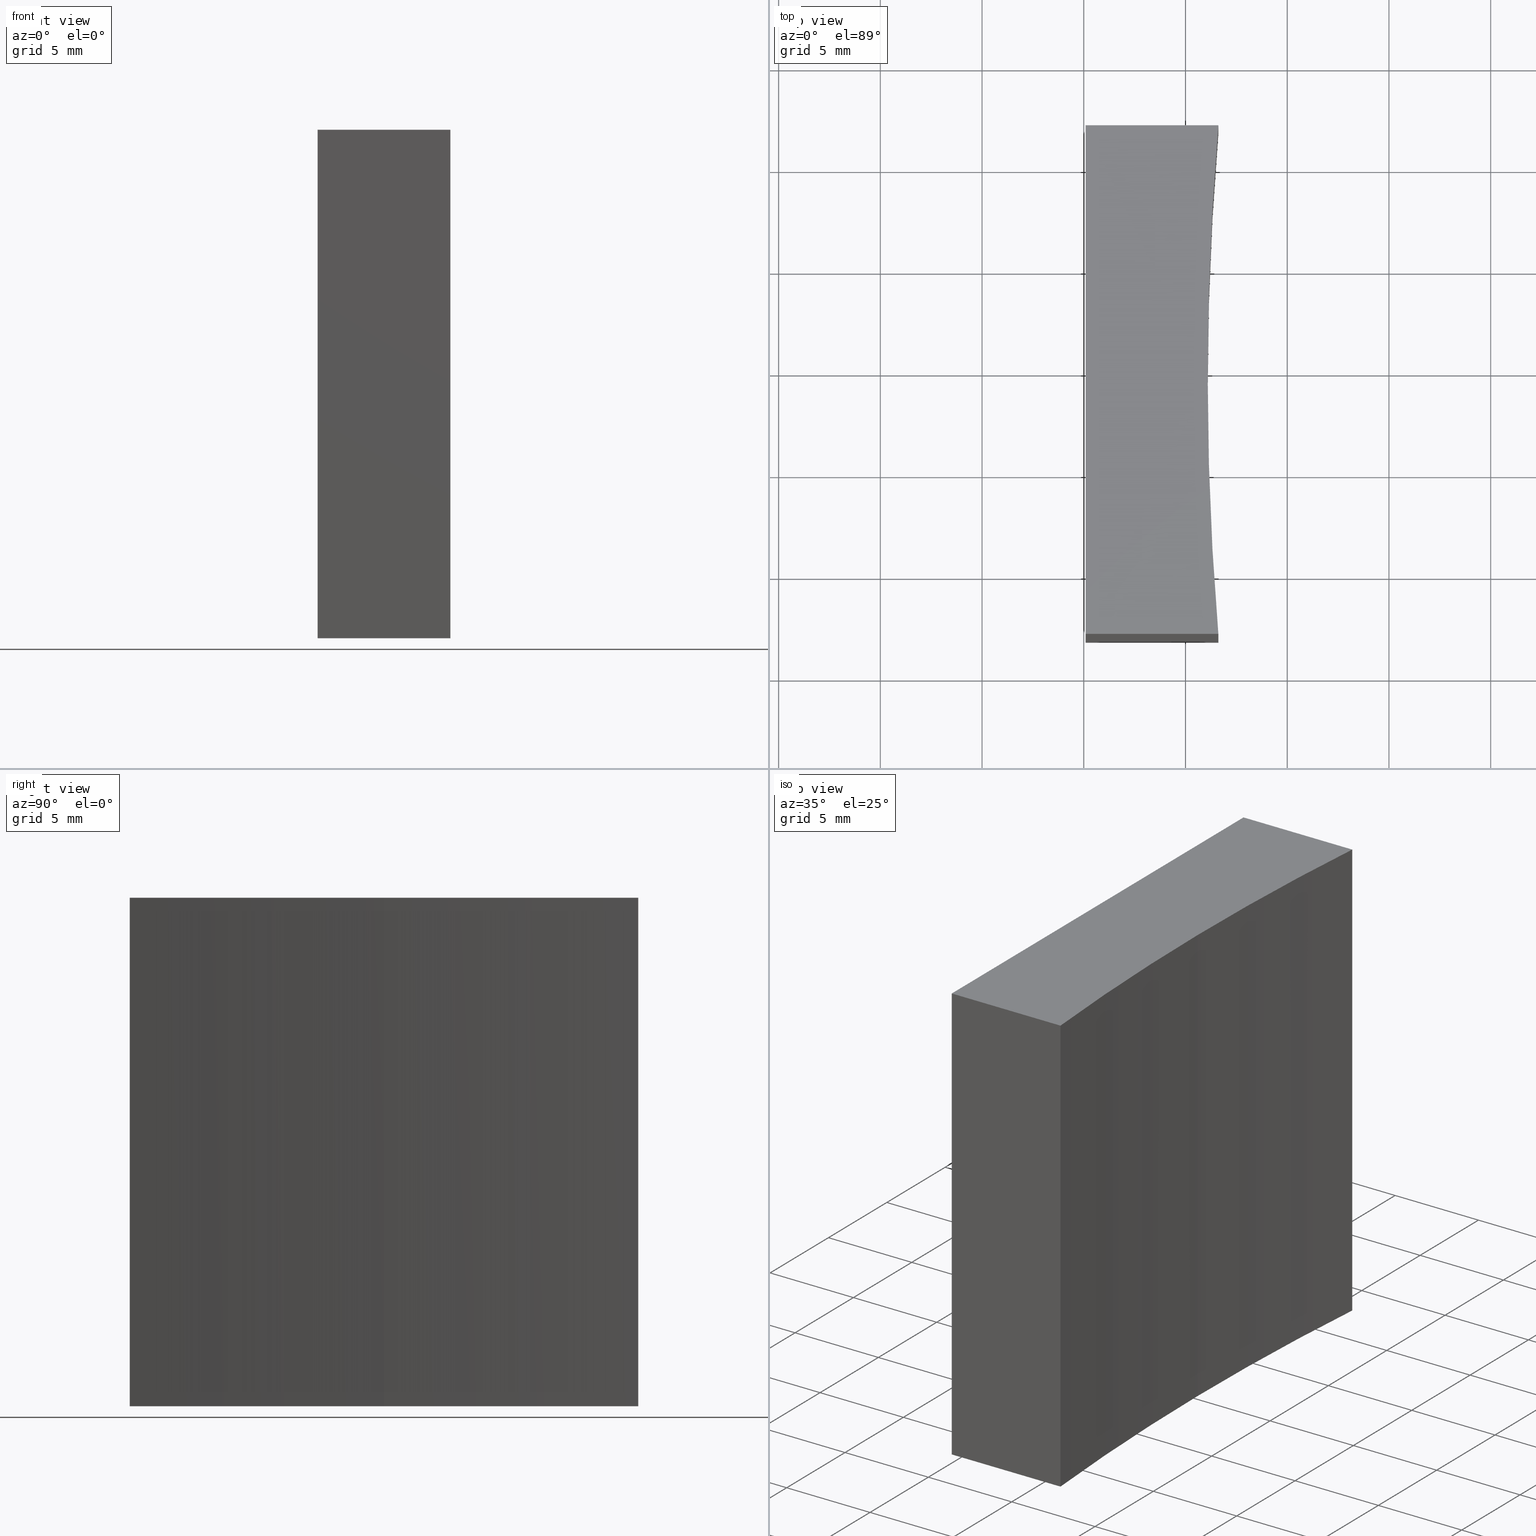
[diagram: canonical four-view strip — front | top / right | iso, engineering-drawing reading convention]
A machine part, canonical four-view strip (front | top / right | iso — engineering-drawing reading convention). The complete STEP part file that produces these views, byte-faithful:
ISO-10303-21;
HEADER;
FILE_DESCRIPTION (( 'STEP AP214' ),
    '1' );
FILE_NAME ('270037.STEP',
    '2019-07-23T01:28:20',
    ( '' ),
    ( '' ),
    'SwSTEP 2.0',
    'SolidWorks 2016',
    '' );
FILE_SCHEMA (( 'AUTOMOTIVE_DESIGN' ));
ENDSEC;

DATA;
#1 = DIRECTION ( 'NONE',  ( 4.255853749513933100E-015, -1.000000000000000000, 0.0000000000000000000 ) ) ;
#2 = CARTESIAN_POINT ( 'NONE',  ( 115.0926555349195200, 81.87802112337243400, 0.0000000000000000000 ) ) ;
#3 = FACE_OUTER_BOUND ( 'NONE', #183, .T. ) ;
#4 = AXIS2_PLACEMENT_3D ( 'NONE', #73, #71, #13 ) ;
#5 = CARTESIAN_POINT ( 'NONE',  ( 271.0926557596387700, 69.37802112337249100, 0.0000000000000000000 ) ) ;
#6 = EDGE_CURVE ( 'NONE', #19, #80, #148, .T. ) ;
#7 = CARTESIAN_POINT ( 'NONE',  ( 121.0926557596387600, 69.37802112337249100, 25.00000000000000000 ) ) ;
#8 = LINE ( 'NONE', #144, #136 ) ;
#9 = ORIENTED_EDGE ( 'NONE', *, *, #218, .T. ) ;
#10 = CARTESIAN_POINT ( 'NONE',  ( 0.0000000000000000000, 0.0000000000000000000, 0.0000000000000000000 ) ) ;
#11 = VECTOR ( 'NONE', #169, 1000.000000000000000 ) ;
#12 = MANIFOLD_SOLID_BREP ( '͹̨-����1', #194 ) ;
#13 = DIRECTION ( 'NONE',  ( 1.000000000000000000, 0.0000000000000000000, 0.0000000000000000000 ) ) ;
#14 = LINE ( 'NONE', #182, #114 ) ;
#15 = ORIENTED_EDGE ( 'NONE', *, *, #105, .F. ) ;
#16 = PRODUCT_RELATED_PRODUCT_CATEGORY ( 'part', '', ( #153 ) ) ;
#17 = ORIENTED_EDGE ( 'NONE', *, *, #195, .T. ) ;
#18 = EDGE_CURVE ( 'NONE', #94, #115, #60, .T. ) ;
#19 = VERTEX_POINT ( 'NONE', #204 ) ;
#20 = CARTESIAN_POINT ( 'NONE',  ( 121.6143964708713000, 81.87802112337246300, 25.00000000000000000 ) ) ;
#21 = DIRECTION ( 'NONE',  ( 1.000000000000000000, 1.063963437378483000E-014, 0.0000000000000000000 ) ) ;
#22 = DIRECTION ( 'NONE',  ( 1.000000000000000000, 0.0000000000000000000, 0.0000000000000000000 ) ) ;
#23 = ORIENTED_EDGE ( 'NONE', *, *, #18, .T. ) ;
#24 = CARTESIAN_POINT ( 'NONE',  ( 115.0926555349195200, 69.37802112337243400, 25.00000000000000000 ) ) ;
#25 = CARTESIAN_POINT ( 'NONE',  ( 121.6143964708712700, 56.87802112337257700, 25.00000000000000000 ) ) ;
#26 = CARTESIAN_POINT ( 'NONE',  ( 115.0926555349195200, 81.87802112337243400, 25.00000000000000000 ) ) ;
#27 = CIRCLE ( 'NONE', #4, 149.9999999999999700 ) ;
#28 = ADVANCED_BREP_SHAPE_REPRESENTATION ( '270037', ( #12, #222 ), #217 ) ;
#29 = PLANE ( 'NONE',  #61 ) ;
#30 =( LENGTH_UNIT ( ) NAMED_UNIT ( * ) SI_UNIT ( .MILLI., .METRE. ) );
#31 = VERTEX_POINT ( 'NONE', #235 ) ;
#32 = VECTOR ( 'NONE', #149, 1000.000000000000000 ) ;
#33 = ORIENTED_EDGE ( 'NONE', *, *, #133, .T. ) ;
#34 = FACE_OUTER_BOUND ( 'NONE', #166, .T. ) ;
#35 = AXIS2_PLACEMENT_3D ( 'NONE', #5, #86, #75 ) ;
#36 = ADVANCED_FACE ( 'NONE', ( #92 ), #207, .F. ) ;
#37 = AXIS2_PLACEMENT_3D ( 'NONE', #70, #85, #172 ) ;
#38 = LINE ( 'NONE', #107, #48 ) ;
#39 = ORIENTED_EDGE ( 'NONE', *, *, #95, .F. ) ;
#40 = DIRECTION ( 'NONE',  ( -0.0000000000000000000, -0.0000000000000000000, -1.000000000000000000 ) ) ;
#41 =( NAMED_UNIT ( * ) PLANE_ANGLE_UNIT ( ) SI_UNIT ( $, .RADIAN. ) );
#42 = SURFACE_STYLE_FILL_AREA ( #167 ) ;
#43 = ORIENTED_EDGE ( 'NONE', *, *, #6, .F. ) ;
#44 = EDGE_CURVE ( 'NONE', #123, #57, #158, .T. ) ;
#45 = PLANE ( 'NONE',  #234 ) ;
#46 = DIRECTION ( 'NONE',  ( 0.0000000000000000000, 0.0000000000000000000, 1.000000000000000000 ) ) ;
#47 = CARTESIAN_POINT ( 'NONE',  ( 115.0926555349195200, 69.37802112337243400, 0.0000000000000000000 ) ) ;
#48 = VECTOR ( 'NONE', #150, 1000.000000000000000 ) ;
#49 = EDGE_CURVE ( 'NONE', #123, #31, #14, .T. ) ;
#50 = DIRECTION ( 'NONE',  ( -0.0000000000000000000, -0.0000000000000000000, -1.000000000000000000 ) ) ;
#51 = CARTESIAN_POINT ( 'NONE',  ( 121.0926557596387600, 69.37802112337249100, 0.0000000000000000000 ) ) ;
#52 = APPLICATION_PROTOCOL_DEFINITION ( 'draft international standard', 'automotive_design', 1998, #199 ) ;
#53 = COLOUR_RGB ( '',1.000000000000000000, 1.000000000000000000, 1.000000000000000000 ) ;
#54 = ORIENTED_EDGE ( 'NONE', *, *, #49, .T. ) ;
#55 = DIRECTION ( 'NONE',  ( -0.0000000000000000000, -0.0000000000000000000, -1.000000000000000000 ) ) ;
#56 = VECTOR ( 'NONE', #55, 1000.000000000000000 ) ;
#57 = VERTEX_POINT ( 'NONE', #25 ) ;
#58 = ADVANCED_FACE ( 'NONE', ( #3 ), #45, .F. ) ;
#59 = EDGE_CURVE ( 'NONE', #94, #175, #8, .T. ) ;
#60 = LINE ( 'NONE', #20, #156 ) ;
#61 = AXIS2_PLACEMENT_3D ( 'NONE', #84, #46, #196 ) ;
#62 = EDGE_CURVE ( 'NONE', #31, #19, #100, .T. ) ;
#63 = ORIENTED_EDGE ( 'NONE', *, *, #105, .T. ) ;
#64 = ADVANCED_FACE ( 'NONE', ( #225 ), #185, .F. ) ;
#65 = DIRECTION ( 'NONE',  ( -1.000000000000000000, 0.0000000000000000000, 0.0000000000000000000 ) ) ;
#66 = DIRECTION ( 'NONE',  ( 1.000000000000000000, 0.0000000000000000000, 0.0000000000000000000 ) ) ;
#67 = DIRECTION ( 'NONE',  ( -1.000000000000000000, -1.063963437378483000E-014, 0.0000000000000000000 ) ) ;
#68 = FACE_OUTER_BOUND ( 'NONE', #181, .T. ) ;
#69 = ORIENTED_EDGE ( 'NONE', *, *, #44, .T. ) ;
#70 = CARTESIAN_POINT ( 'NONE',  ( 271.0926557596387700, 69.37802112337249100, 25.00000000000000000 ) ) ;
#71 = DIRECTION ( 'NONE',  ( -0.0000000000000000000, -0.0000000000000000000, -1.000000000000000000 ) ) ;
#72 = EDGE_CURVE ( 'NONE', #57, #230, #180, .T. ) ;
#73 = CARTESIAN_POINT ( 'NONE',  ( 271.0926557596387700, 69.37802112337249100, 25.00000000000000000 ) ) ;
#74 = EDGE_LOOP ( 'NONE', ( #209, #69, #193, #137, #91 ) ) ;
#75 = DIRECTION ( 'NONE',  ( 1.000000000000000000, 0.0000000000000000000, 0.0000000000000000000 ) ) ;
#76 = PRODUCT_DEFINITION ( 'δ֪', '', #236, #140 ) ;
#77 =( GEOMETRIC_REPRESENTATION_CONTEXT ( 3 ) GLOBAL_UNCERTAINTY_ASSIGNED_CONTEXT ( ( #121 ) ) GLOBAL_UNIT_ASSIGNED_CONTEXT ( ( #163, #41, #237 ) ) REPRESENTATION_CONTEXT ( 'NONE', 'WORKASPACE' ) );
#78 = ORIENTED_EDGE ( 'NONE', *, *, #49, .F. ) ;
#79 = PRESENTATION_STYLE_ASSIGNMENT (( #132 ) ) ;
#80 = VERTEX_POINT ( 'NONE', #51 ) ;
#81 = DIRECTION ( 'NONE',  ( -0.0000000000000000000, -0.0000000000000000000, -1.000000000000000000 ) ) ;
#82 = CARTESIAN_POINT ( 'NONE',  ( 271.0926557596387700, 69.37802112337249100, 0.0000000000000000000 ) ) ;
#83 = PRESENTATION_LAYER_ASSIGNMENT (  '', '', ( #157 ) ) ;
#84 = CARTESIAN_POINT ( 'NONE',  ( 271.0926557596387700, 69.37802112337249100, 25.00000000000000000 ) ) ;
#85 = DIRECTION ( 'NONE',  ( -0.0000000000000000000, -0.0000000000000000000, -1.000000000000000000 ) ) ;
#86 = DIRECTION ( 'NONE',  ( -0.0000000000000000000, -0.0000000000000000000, -1.000000000000000000 ) ) ;
#87 = VECTOR ( 'NONE', #103, 1000.000000000000000 ) ;
#88 = ORIENTED_EDGE ( 'NONE', *, *, #117, .F. ) ;
#89 = DIRECTION ( 'NONE',  ( 0.0000000000000000000, 0.0000000000000000000, -1.000000000000000000 ) ) ;
#90 = VECTOR ( 'NONE', #108, 1000.000000000000000 ) ;
#91 = ORIENTED_EDGE ( 'NONE', *, *, #59, .T. ) ;
#92 = FACE_OUTER_BOUND ( 'NONE', #102, .T. ) ;
#93 = SURFACE_STYLE_FILL_AREA ( #174 ) ;
#94 = VERTEX_POINT ( 'NONE', #208 ) ;
#95 = EDGE_CURVE ( 'NONE', #175, #123, #202, .T. ) ;
#96 = ADVANCED_FACE ( 'NONE', ( #164 ), #212, .F. ) ;
#97 = MECHANICAL_DESIGN_GEOMETRIC_PRESENTATION_REPRESENTATION (  '', ( #157 ), #104 ) ;
#98 = DIRECTION ( 'NONE',  ( -0.0000000000000000000, -0.0000000000000000000, -1.000000000000000000 ) ) ;
#99 = PRESENTATION_LAYER_ASSIGNMENT (  '', '', ( #206 ) ) ;
#100 = LINE ( 'NONE', #221, #90 ) ;
#101 = SURFACE_SIDE_STYLE ('',( #42 ) ) ;
#102 = EDGE_LOOP ( 'NONE', ( #226, #110, #15, #173, #43 ) ) ;
#103 = DIRECTION ( 'NONE',  ( -0.0000000000000000000, -0.0000000000000000000, -1.000000000000000000 ) ) ;
#104 =( GEOMETRIC_REPRESENTATION_CONTEXT ( 3 ) GLOBAL_UNCERTAINTY_ASSIGNED_CONTEXT ( ( #145 ) ) GLOBAL_UNIT_ASSIGNED_CONTEXT ( ( #129, #128, #215 ) ) REPRESENTATION_CONTEXT ( 'NONE', 'WORKASPACE' ) );
#105 = EDGE_CURVE ( 'NONE', #115, #179, #38, .T. ) ;
#106 = CARTESIAN_POINT ( 'NONE',  ( 115.0926555349195200, 69.37802112337243400, 25.00000000000000000 ) ) ;
#107 = CARTESIAN_POINT ( 'NONE',  ( 115.0926555349195200, 81.87802112337243400, 0.0000000000000000000 ) ) ;
#108 = DIRECTION ( 'NONE',  ( 1.000000000000000000, 1.063963437378483000E-014, 0.0000000000000000000 ) ) ;
#109 = FILL_AREA_STYLE_COLOUR ( '', #53 ) ;
#110 = ORIENTED_EDGE ( 'NONE', *, *, #198, .F. ) ;
#111 = AXIS2_PLACEMENT_3D ( 'NONE', #127, #189, #66 ) ;
#112 = LINE ( 'NONE', #47, #161 ) ;
#113 = AXIS2_PLACEMENT_3D ( 'NONE', #138, #239, #139 ) ;
#114 = VECTOR ( 'NONE', #98, 1000.000000000000000 ) ;
#115 = VERTEX_POINT ( 'NONE', #124 ) ;
#116 = ADVANCED_FACE ( 'NONE', ( #68 ), #134, .F. ) ;
#117 = EDGE_CURVE ( 'NONE', #175, #179, #152, .T. ) ;
#118 = PRESENTATION_STYLE_ASSIGNMENT (( #120 ) ) ;
#119 = EDGE_LOOP ( 'NONE', ( #63, #88, #232, #23 ) ) ;
#120 = SURFACE_STYLE_USAGE ( .BOTH. , #101 ) ;
#121 = UNCERTAINTY_MEASURE_WITH_UNIT (LENGTH_MEASURE( 1.000000000000000100E-005 ), #163, 'distance_accuracy_value', 'NONE');
#122 = AXIS2_PLACEMENT_3D ( 'NONE', #26, #1, #211 ) ;
#123 = VERTEX_POINT ( 'NONE', #224 ) ;
#124 = CARTESIAN_POINT ( 'NONE',  ( 121.6143964708713000, 81.87802112337246300, 0.0000000000000000000 ) ) ;
#125 = DIRECTION ( 'NONE',  ( -1.000000000000000000, -4.255853749513932300E-015, -0.0000000000000000000 ) ) ;
#126 = EDGE_LOOP ( 'NONE', ( #131, #78, #39, #154 ) ) ;
#127 = CARTESIAN_POINT ( 'NONE',  ( 271.0926557596387700, 69.37802112337249100, 25.00000000000000000 ) ) ;
#128 =( NAMED_UNIT ( * ) PLANE_ANGLE_UNIT ( ) SI_UNIT ( $, .RADIAN. ) );
#129 =( LENGTH_UNIT ( ) NAMED_UNIT ( * ) SI_UNIT ( .MILLI., .METRE. ) );
#130 = APPLICATION_CONTEXT ( 'automotive_design' ) ;
#131 = ORIENTED_EDGE ( 'NONE', *, *, #198, .T. ) ;
#132 = SURFACE_STYLE_USAGE ( .BOTH. , #228 ) ;
#133 = EDGE_CURVE ( 'NONE', #230, #80, #191, .T. ) ;
#134 = CYLINDRICAL_SURFACE ( 'NONE', #37, 150.0000000000000000 ) ;
#135 = ORIENTED_EDGE ( 'NONE', *, *, #6, .T. ) ;
#136 = VECTOR ( 'NONE', #125, 1000.000000000000000 ) ;
#137 = ORIENTED_EDGE ( 'NONE', *, *, #210, .T. ) ;
#138 = CARTESIAN_POINT ( 'NONE',  ( 271.0926557596387700, 69.37802112337249100, 0.0000000000000000000 ) ) ;
#139 = DIRECTION ( 'NONE',  ( 1.000000000000000000, 0.0000000000000000000, -0.0000000000000000000 ) ) ;
#140 = PRODUCT_DEFINITION_CONTEXT ( 'detailed design', #130, 'design' ) ;
#141 = LINE ( 'NONE', #231, #56 ) ;
#142 = COLOUR_RGB ( '',1.000000000000000000, 1.000000000000000000, 1.000000000000000000 ) ;
#143 = CARTESIAN_POINT ( 'NONE',  ( 115.0926555349195200, 56.87802112337244200, 25.00000000000000000 ) ) ;
#144 = CARTESIAN_POINT ( 'NONE',  ( 115.0926555349195200, 81.87802112337243400, 25.00000000000000000 ) ) ;
#145 = UNCERTAINTY_MEASURE_WITH_UNIT (LENGTH_MEASURE( 1.000000000000000100E-005 ), #129, 'distance_accuracy_value', 'NONE');
#146 = MECHANICAL_DESIGN_GEOMETRIC_PRESENTATION_REPRESENTATION (  '', ( #206 ), #77 ) ;
#147 = DIRECTION ( 'NONE',  ( -1.063963437378483000E-014, 1.000000000000000000, 0.0000000000000000000 ) ) ;
#148 = CIRCLE ( 'NONE', #201, 149.9999999999999700 ) ;
#149 = DIRECTION ( 'NONE',  ( -0.0000000000000000000, -0.0000000000000000000, -1.000000000000000000 ) ) ;
#150 = DIRECTION ( 'NONE',  ( -1.000000000000000000, -4.255853749513932300E-015, -0.0000000000000000000 ) ) ;
#151 = APPLICATION_PROTOCOL_DEFINITION ( 'draft international standard', 'automotive_design', 1998, #130 ) ;
#152 = LINE ( 'NONE', #170, #87 ) ;
#153 = PRODUCT ( '270037', '270037', '', ( #200 ) ) ;
#154 = ORIENTED_EDGE ( 'NONE', *, *, #117, .T. ) ;
#155 =( NAMED_UNIT ( * ) PLANE_ANGLE_UNIT ( ) SI_UNIT ( $, .RADIAN. ) );
#156 = VECTOR ( 'NONE', #40, 1000.000000000000000 ) ;
#157 = STYLED_ITEM ( 'NONE', ( #79 ), #28 ) ;
#158 = LINE ( 'NONE', #143, #229 ) ;
#159 = ORIENTED_EDGE ( 'NONE', *, *, #72, .F. ) ;
#160 = SHAPE_DEFINITION_REPRESENTATION ( #216, #28 ) ;
#161 = VECTOR ( 'NONE', #184, 1000.000000000000000 ) ;
#162 = ADVANCED_FACE ( 'NONE', ( #219 ), #29, .T. ) ;
#163 =( LENGTH_UNIT ( ) NAMED_UNIT ( * ) SI_UNIT ( .MILLI., .METRE. ) );
#164 = FACE_OUTER_BOUND ( 'NONE', #126, .T. ) ;
#165 = ADVANCED_FACE ( 'NONE', ( #34 ), #192, .F. ) ;
#166 = EDGE_LOOP ( 'NONE', ( #214, #33, #17, #178 ) ) ;
#167 = FILL_AREA_STYLE ('',( #205 ) ) ;
#168 = AXIS2_PLACEMENT_3D ( 'NONE', #106, #197, #89 ) ;
#169 = DIRECTION ( 'NONE',  ( 0.0000000000000000000, -1.000000000000000000, 0.0000000000000000000 ) ) ;
#170 = CARTESIAN_POINT ( 'NONE',  ( 115.0926555349195200, 81.87802112337243400, 25.00000000000000000 ) ) ;
#171 = CARTESIAN_POINT ( 'NONE',  ( 271.0926557596387700, 69.37802112337249100, 25.00000000000000000 ) ) ;
#172 = DIRECTION ( 'NONE',  ( -1.000000000000000000, 0.0000000000000000000, 0.0000000000000000000 ) ) ;
#173 = ORIENTED_EDGE ( 'NONE', *, *, #195, .F. ) ;
#174 = FILL_AREA_STYLE ('',( #109 ) ) ;
#175 = VERTEX_POINT ( 'NONE', #223 ) ;
#176 = DIRECTION ( 'NONE',  ( 1.000000000000000000, 0.0000000000000000000, 0.0000000000000000000 ) ) ;
#177 = CARTESIAN_POINT ( 'NONE',  ( 121.0926557596387600, 69.37802112337249100, 25.00000000000000000 ) ) ;
#178 = ORIENTED_EDGE ( 'NONE', *, *, #18, .F. ) ;
#179 = VERTEX_POINT ( 'NONE', #2 ) ;
#180 = CIRCLE ( 'NONE', #111, 149.9999999999999700 ) ;
#181 = EDGE_LOOP ( 'NONE', ( #203, #159, #9, #135 ) ) ;
#182 = CARTESIAN_POINT ( 'NONE',  ( 115.0926555349195200, 56.87802112337244200, 25.00000000000000000 ) ) ;
#183 = EDGE_LOOP ( 'NONE', ( #187, #238, #220, #54 ) ) ;
#184 = DIRECTION ( 'NONE',  ( -0.0000000000000000000, -1.000000000000000000, -0.0000000000000000000 ) ) ;
#185 = PLANE ( 'NONE',  #122 ) ;
#186 = CIRCLE ( 'NONE', #35, 149.9999999999999700 ) ;
#187 = ORIENTED_EDGE ( 'NONE', *, *, #62, .T. ) ;
#188 = CARTESIAN_POINT ( 'NONE',  ( 115.0926555349195200, 56.87802112337244200, 25.00000000000000000 ) ) ;
#189 = DIRECTION ( 'NONE',  ( -0.0000000000000000000, -0.0000000000000000000, -1.000000000000000000 ) ) ;
#190 =( NAMED_UNIT ( * ) SI_UNIT ( $, .STERADIAN. ) SOLID_ANGLE_UNIT ( ) );
#191 = LINE ( 'NONE', #7, #32 ) ;
#192 = CYLINDRICAL_SURFACE ( 'NONE', #227, 150.0000000000000000 ) ;
#193 = ORIENTED_EDGE ( 'NONE', *, *, #72, .T. ) ;
#194 = CLOSED_SHELL ( 'NONE', ( #165, #58, #116, #64, #96, #162, #36 ) ) ;
#195 = EDGE_CURVE ( 'NONE', #80, #115, #186, .T. ) ;
#196 = DIRECTION ( 'NONE',  ( 1.000000000000000000, 0.0000000000000000000, -0.0000000000000000000 ) ) ;
#197 = DIRECTION ( 'NONE',  ( 1.000000000000000000, 0.0000000000000000000, 0.0000000000000000000 ) ) ;
#198 = EDGE_CURVE ( 'NONE', #179, #31, #112, .T. ) ;
#199 = APPLICATION_CONTEXT ( 'automotive_design' ) ;
#200 = PRODUCT_CONTEXT ( 'NONE', #199, 'mechanical' ) ;
#201 = AXIS2_PLACEMENT_3D ( 'NONE', #82, #81, #22 ) ;
#202 = LINE ( 'NONE', #24, #11 ) ;
#203 = ORIENTED_EDGE ( 'NONE', *, *, #133, .F. ) ;
#204 = CARTESIAN_POINT ( 'NONE',  ( 121.6143964708712700, 56.87802112337257700, 0.0000000000000000000 ) ) ;
#205 = FILL_AREA_STYLE_COLOUR ( '', #142 ) ;
#206 = STYLED_ITEM ( 'NONE', ( #118 ), #12 ) ;
#207 = PLANE ( 'NONE',  #113 ) ;
#208 = CARTESIAN_POINT ( 'NONE',  ( 121.6143964708713000, 81.87802112337246300, 25.00000000000000000 ) ) ;
#209 = ORIENTED_EDGE ( 'NONE', *, *, #95, .T. ) ;
#210 = EDGE_CURVE ( 'NONE', #230, #94, #27, .T. ) ;
#211 = DIRECTION ( 'NONE',  ( 1.000000000000000000, 4.255853749513933100E-015, 0.0000000000000000000 ) ) ;
#212 = PLANE ( 'NONE',  #168 ) ;
#213 = DIRECTION ( 'NONE',  ( 0.0000000000000000000, 0.0000000000000000000, 1.000000000000000000 ) ) ;
#214 = ORIENTED_EDGE ( 'NONE', *, *, #210, .F. ) ;
#215 =( NAMED_UNIT ( * ) SI_UNIT ( $, .STERADIAN. ) SOLID_ANGLE_UNIT ( ) );
#216 = PRODUCT_DEFINITION_SHAPE ( 'NONE', 'NONE',  #76 ) ;
#217 =( GEOMETRIC_REPRESENTATION_CONTEXT ( 3 ) GLOBAL_UNCERTAINTY_ASSIGNED_CONTEXT ( ( #233 ) ) GLOBAL_UNIT_ASSIGNED_CONTEXT ( ( #30, #155, #190 ) ) REPRESENTATION_CONTEXT ( 'NONE', 'WORKASPACE' ) );
#218 = EDGE_CURVE ( 'NONE', #57, #19, #141, .T. ) ;
#219 = FACE_OUTER_BOUND ( 'NONE', #74, .T. ) ;
#220 = ORIENTED_EDGE ( 'NONE', *, *, #44, .F. ) ;
#221 = CARTESIAN_POINT ( 'NONE',  ( 115.0926555349195200, 56.87802112337244200, 0.0000000000000000000 ) ) ;
#222 = AXIS2_PLACEMENT_3D ( 'NONE', #10, #213, #176 ) ;
#223 = CARTESIAN_POINT ( 'NONE',  ( 115.0926555349195200, 81.87802112337243400, 25.00000000000000000 ) ) ;
#224 = CARTESIAN_POINT ( 'NONE',  ( 115.0926555349195200, 56.87802112337244200, 25.00000000000000000 ) ) ;
#225 = FACE_OUTER_BOUND ( 'NONE', #119, .T. ) ;
#226 = ORIENTED_EDGE ( 'NONE', *, *, #62, .F. ) ;
#227 = AXIS2_PLACEMENT_3D ( 'NONE', #171, #50, #65 ) ;
#228 = SURFACE_SIDE_STYLE ('',( #93 ) ) ;
#229 = VECTOR ( 'NONE', #21, 1000.000000000000000 ) ;
#230 = VERTEX_POINT ( 'NONE', #177 ) ;
#231 = CARTESIAN_POINT ( 'NONE',  ( 121.6143964708712700, 56.87802112337257700, 25.00000000000000000 ) ) ;
#232 = ORIENTED_EDGE ( 'NONE', *, *, #59, .F. ) ;
#233 = UNCERTAINTY_MEASURE_WITH_UNIT (LENGTH_MEASURE( 1.000000000000000100E-005 ), #30, 'distance_accuracy_value', 'NONE');
#234 = AXIS2_PLACEMENT_3D ( 'NONE', #188, #147, #67 ) ;
#235 = CARTESIAN_POINT ( 'NONE',  ( 115.0926555349195200, 56.87802112337244200, 0.0000000000000000000 ) ) ;
#236 = PRODUCT_DEFINITION_FORMATION_WITH_SPECIFIED_SOURCE ( '�κ�', '', #153, .NOT_KNOWN. ) ;
#237 =( NAMED_UNIT ( * ) SI_UNIT ( $, .STERADIAN. ) SOLID_ANGLE_UNIT ( ) );
#238 = ORIENTED_EDGE ( 'NONE', *, *, #218, .F. ) ;
#239 = DIRECTION ( 'NONE',  ( 0.0000000000000000000, 0.0000000000000000000, 1.000000000000000000 ) ) ;
ENDSEC;
END-ISO-10303-21;
